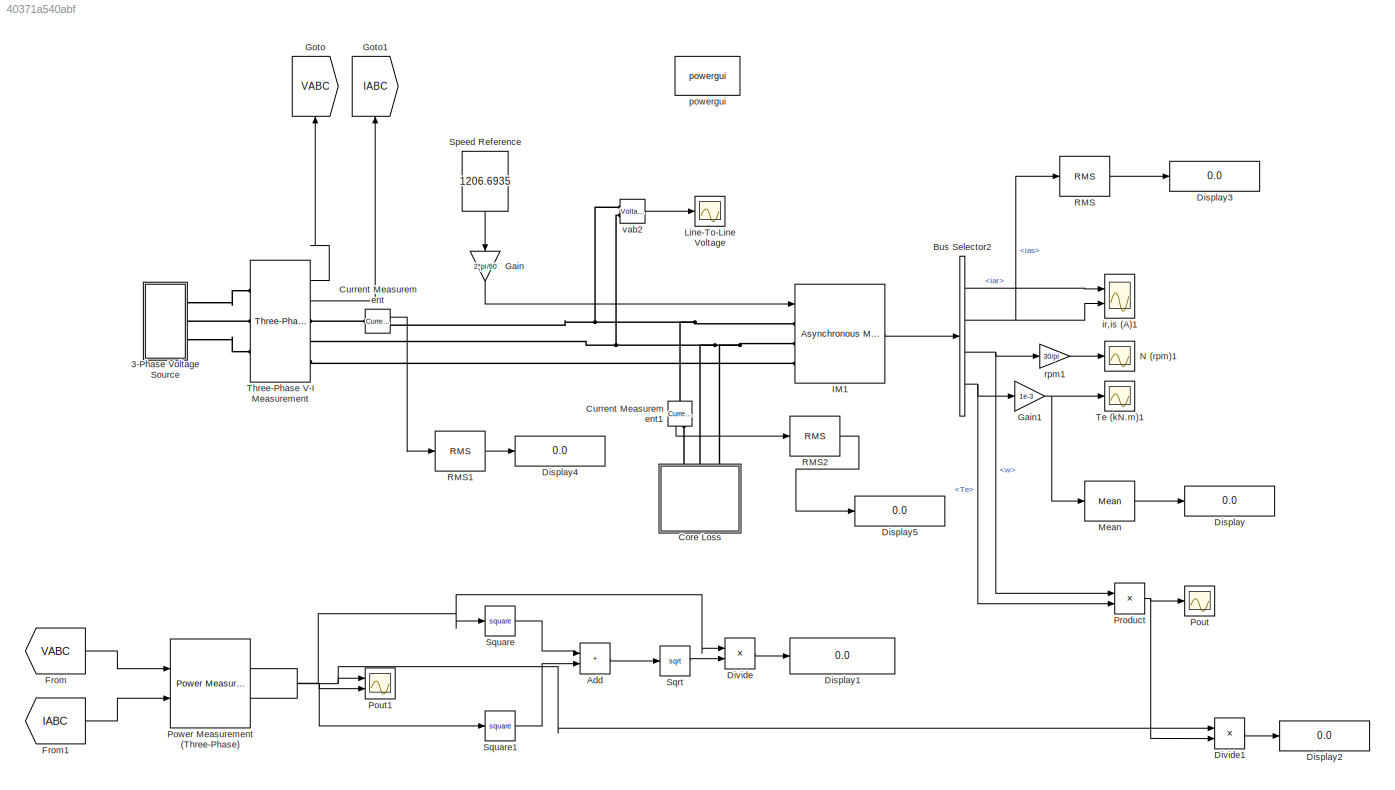
MODEL slx_40371a540abf
KIND model
CONFIG AbsTol = auto
CONFIG EnableMultiTasking = off
CONFIG FixedStep = 1e-5
CONFIG InitFcn = parameter
CONFIG MaxStep = auto
CONFIG MinStep = auto
CONFIG RelTol = 1e-3
CONFIG SampleTimeConstraint = Unconstrained
CONFIG SolverName = FixedStepAuto
CONFIG StartTime = 0.0
CONFIG StopTime = 10
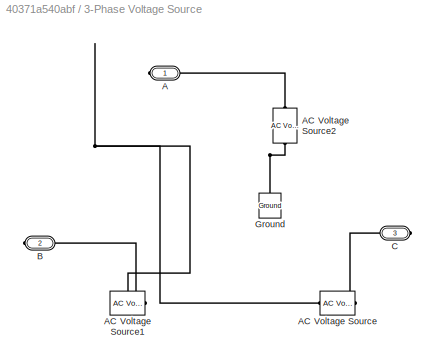
BLOCK [SubSystem] 3-Phase Voltage Source
  Ports = [0, 0, 0, 0, 0, 0, 3]
  RequestExecContextInheritance = off
BLOCK [PMIOPort] 3-Phase Voltage Source/A
  Side = Right
BLOCK [Reference] 3-Phase Voltage Source/AC Voltage Source  REF=spsACVoltageSourceLib/AC Voltage Source
  NameLocation = left
  Ports = [0, 0, 0, 0, 0, 1, 1]
  SourceBlock = spsACVoltageSourceLib/AC Voltage Source
  SourceProductBaseCode = PS
  SourceType = AC Voltage Source
BLOCK [Reference] 3-Phase Voltage Source/AC Voltage Source1  REF=spsACVoltageSourceLib/AC Voltage Source
  NameLocation = right
  Ports = [0, 0, 0, 0, 0, 1, 1]
  SourceBlock = spsACVoltageSourceLib/AC Voltage Source
  SourceProductBaseCode = PS
  SourceType = AC Voltage Source
BLOCK [Reference] 3-Phase Voltage Source/AC Voltage Source2  REF=spsACVoltageSourceLib/AC Voltage Source
  Ports = [0, 0, 0, 0, 0, 1, 1]
  SourceBlock = spsACVoltageSourceLib/AC Voltage Source
  SourceProductBaseCode = PS
  SourceType = AC Voltage Source
BLOCK [PMIOPort] 3-Phase Voltage Source/B
  Port = 2
  Side = Right
BLOCK [PMIOPort] 3-Phase Voltage Source/C
  Port = 3
  Side = Right
BLOCK [Reference] 3-Phase Voltage Source/Ground  REF=spsGroundLib/Ground
  NameLocation = right
  Ports = [0, 0, 0, 0, 0, 1]
  SourceBlock = spsGroundLib/Ground
  SourceProductBaseCode = PS
  SourceType = Ground
BLOCK [Sum] Add
  IconShape = rectangular
  Ports = [2, 1]
BLOCK [BusSelector] Bus Selector2
  OutputSignals = iar,ias,w,Te
  Ports = [1, 4]
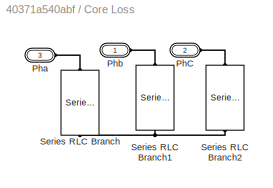
BLOCK [SubSystem] Core Loss
  NameLocation = left
  Ports = [0, 0, 0, 0, 0, 3]
  RequestExecContextInheritance = off
BLOCK [PMIOPort] Core Loss/PhC
  Port = 2
  Side = Left
BLOCK [PMIOPort] Core Loss/Pha
  Port = 3
  Side = Left
BLOCK [PMIOPort] Core Loss/Phb
  Side = Left
BLOCK [Reference] Core Loss/Series RLC Branch  REF=spsSeriesRLCBranchLib/Series RLC Branch
  NameLocation = left
  Ports = [0, 0, 0, 0, 0, 1, 1]
  SourceBlock = spsSeriesRLCBranchLib/Series RLC Branch
  SourceProductBaseCode = PS
  SourceType = Series RLC Branch
BLOCK [Reference] Core Loss/Series RLC Branch1  REF=spsSeriesRLCBranchLib/Series RLC Branch
  NameLocation = left
  Ports = [0, 0, 0, 0, 0, 1, 1]
  SourceBlock = spsSeriesRLCBranchLib/Series RLC Branch
  SourceProductBaseCode = PS
  SourceType = Series RLC Branch
BLOCK [Reference] Core Loss/Series RLC Branch2  REF=spsSeriesRLCBranchLib/Series RLC Branch
  NameLocation = left
  Ports = [0, 0, 0, 0, 0, 1, 1]
  SourceBlock = spsSeriesRLCBranchLib/Series RLC Branch
  SourceProductBaseCode = PS
  SourceType = Series RLC Branch
BLOCK [Reference] Current Measurement  REF=spsCurrentMeasurementLib/Current Measurement
  Ports = [0, 1, 0, 0, 0, 1, 1]
  SourceBlock = spsCurrentMeasurementLib/Current Measurement
  SourceProductBaseCode = PS
  SourceType = Current Measurement
  UserDataPersistent = on
BLOCK [Reference] Current Measurement1  REF=spsCurrentMeasurementLib/Current Measurement
  NameLocation = left
  Ports = [0, 1, 0, 0, 0, 1, 1]
  SourceBlock = spsCurrentMeasurementLib/Current Measurement
  SourceProductBaseCode = PS
  SourceType = Current Measurement
  UserDataPersistent = on
BLOCK [Display] Display
  Decimation = 1
  Format = long
  Ports = [1]
BLOCK [Display] Display1
  Decimation = 1
  Format = long
  Ports = [1]
BLOCK [Display] Display2
  Decimation = 1
  Format = long
  Ports = [1]
BLOCK [Display] Display3
  Decimation = 1
  Format = long
  Ports = [1]
BLOCK [Display] Display4
  Decimation = 1
  Format = long
  Ports = [1]
BLOCK [Display] Display5
  Decimation = 1
  Format = long
  Ports = [1]
BLOCK [Product] Divide
  Inputs = */
  Ports = [2, 1]
BLOCK [Product] Divide1
  Inputs = */
  Ports = [2, 1]
BLOCK [From] From
  GotoTag = VABC
BLOCK [From] From1
  GotoTag = IABC
BLOCK [Gain] Gain
  Gain = 2*pi/60
  NameLocation = left
BLOCK [Gain] Gain1
  Gain = 1e-3
BLOCK [Goto] Goto
  GotoTag = VABC
  NameLocation = right
BLOCK [Goto] Goto1
  GotoTag = IABC
  NameLocation = right
BLOCK [Reference] IM1  REF=spsAsynchronousMachineSIUnitsLib/Asynchronous Machine
SI Units
  AttributesFormatString = \n
  Ports = [1, 1, 0, 0, 0, 3]
  SourceBlock = spsAsynchronousMachineSIUnitsLib/Asynchronous Machine\nSI Units
  SourceProductBaseCode = PS
  SourceType = Asynchronous Machine
BLOCK [Scope] Line-To-Line Voltage
  Floating = off
  NameLocation = top
  NumInputPorts = 1
  Ports = [1]
  ScopeSpecificationString = Simulink.scopes.TimeScopeBlockCfg('CurrentConfiguration', extmgr.ConfigurationSet(extmgr.Configuration('Core','General UI',true),extmgr.Configuration('Core','Source UI',true),extmgr.Configuration('Sources','WiredSimulink',true,'DataLoggingSaveFormat','Array','DataLoggingDecimation','1','DataLoggingDecimateData',true,'DataLoggingVariableName','ScopeData7'),extmgr.Configuration('Visuals','Time Domai...<+1672ch>
BLOCK [Reference] Mean  REF=spsMeanLib/Mean
  Ports = [1, 1]
  SourceBlock = spsMeanLib/Mean
  SourceProductBaseCode = PS
  SourceType = Mean
BLOCK [Scope] N (rpm)1
  Floating = off
  NameLocation = top
  NumInputPorts = 1
  Ports = [1]
  ScopeSpecificationString = Simulink.scopes.TimeScopeBlockCfg('CurrentConfiguration', extmgr.ConfigurationSet(extmgr.Configuration('Core','General UI',true,'FigureColor',[1 1 1]),extmgr.Configuration('Core','Source UI',true),extmgr.Configuration('Sources','WiredSimulink',true,'DataLoggingSaveFormat','Array','DataLoggingDecimation','1','DataLoggingDecimateData',true),extmgr.Configuration('Visuals','Time Domain',true,'Serializ...<+1746ch>
BLOCK [Scope] Pout
  Floating = off
  NumInputPorts = 1
  Ports = [1]
  ScopeSpecificationString = Simulink.scopes.TimeScopeBlockCfg('CurrentConfiguration', extmgr.ConfigurationSet(extmgr.Configuration('Core','General UI',true,'FigureColor',[1 1 1]),extmgr.Configuration('Core','Source UI',true),extmgr.Configuration('Sources','WiredSimulink',true,'DataLoggingSaveFormat','Array','DataLoggingDecimation','1','DataLoggingDecimateData',true,'DataLoggingVariableName','ScopeData1'),extmgr.Configuration...<+1806ch>
BLOCK [Scope] Pout1
  Floating = off
  NumInputPorts = 2
  Ports = [2]
  ScopeSpecificationString = Simulink.scopes.TimeScopeBlockCfg('CurrentConfiguration', extmgr.ConfigurationSet(extmgr.Configuration('Core','General UI',true,'FigureColor',[1 1 1]),extmgr.Configuration('Core','Source UI',true),extmgr.Configuration('Sources','WiredSimulink',true,'DataLoggingSaveFormat','Array','DataLoggingDecimation','1','DataLoggingDecimateData',true,'DataLoggingVariableName','ScopeData2'),extmgr.Configuration...<+2608ch>
BLOCK [Reference] Power Measurement (Three-Phase)  REF=eePowerMeasurement/Power Measurement
(Three-Phase)
  Ports = [2, 2]
  SourceBlock = eePowerMeasurement/Power Measurement\n(Three-Phase)
  SourceProductBaseCode = PS
  SourceType = Power Measurement (Three-Phase)
BLOCK [Product] Product
  Ports = [2, 1]
BLOCK [Reference] RMS  REF=spsRMSLib/RMS
  Ports = [1, 1]
  SourceBlock = spsRMSLib/RMS
  SourceProductBaseCode = PS
  SourceType = RMS
BLOCK [Reference] RMS1  REF=spsRMSLib/RMS
  Ports = [1, 1]
  SourceBlock = spsRMSLib/RMS
  SourceProductBaseCode = PS
  SourceType = RMS
BLOCK [Reference] RMS2  REF=spsRMSLib/RMS
  Ports = [1, 1]
  SourceBlock = spsRMSLib/RMS
  SourceProductBaseCode = PS
  SourceType = RMS
BLOCK [Constant] Speed Reference
  NameLocation = left
  Value = 1206.6935
BLOCK [Sqrt] Sqrt
BLOCK [Math] Square
  Operator = square
  Ports = [1, 1]
BLOCK [Math] Square1
  Operator = square
  Ports = [1, 1]
BLOCK [Scope] Te (kN.m)1
  Floating = off
  NumInputPorts = 1
  Ports = [1]
  ScopeSpecificationString = Simulink.scopes.TimeScopeBlockCfg('CurrentConfiguration', extmgr.ConfigurationSet(extmgr.Configuration('Core','General UI',true,'FigureColor',[1 1 1]),extmgr.Configuration('Core','Source UI',true),extmgr.Configuration('Sources','WiredSimulink',true,'DataLoggingSaveFormat','Array','DataLoggingDecimation','1','DataLoggingDecimateData',true,'DataLoggingVariableName','ScopeData1'),extmgr.Configuration...<+1806ch>
BLOCK [Reference] Three-Phase V-I Measurement  REF=spsThreePhaseVIMeasurementLib/Three-Phase
V-I Measurement
  Ports = [0, 2, 0, 0, 0, 3, 3]
  SourceBlock = spsThreePhaseVIMeasurementLib/Three-Phase\nV-I Measurement
  SourceProductBaseCode = PS
  SourceType = Three-Phase VI Measurement
BLOCK [Scope] ir,is (A)1
  Floating = off
  NameLocation = top
  NumInputPorts = 2
  Ports = [2]
  ScopeSpecificationString = Simulink.scopes.TimeScopeBlockCfg('CurrentConfiguration', extmgr.ConfigurationSet(extmgr.Configuration('Core','General UI',true,'FigureColor',[1 1 1]),extmgr.Configuration('Core','Source UI',true),extmgr.Configuration('Sources','WiredSimulink',true,'DataLoggingSaveFormat','Array','DataLoggingDecimation','1','DataLoggingDecimateData',true,'DataLoggingVariableName','ScopeData2'),extmgr.Configuration...<+2610ch>
BLOCK [Reference] powergui  REF=spspowerguiLib/powergui
  Ports = []
  SourceBlock = spspowerguiLib/powergui
  SourceProductBaseCode = PS
  SourceType = PSB option menu block
BLOCK [Gain] rpm1
  Gain = 30/pi
  OutDataTypeStr = Inherit: Same as input
  ParamDataTypeStr = Inherit: Same as input
  SaturateOnIntegerOverflow = on
BLOCK [Reference] vab2  REF=spsVoltageMeasurementLib/Voltage Measurement
  AttributesFormatString = \n
  NameLocation = top
  Ports = [0, 1, 0, 0, 0, 2]
  SourceBlock = spsVoltageMeasurementLib/Voltage Measurement
  SourceProductBaseCode = PS
  SourceType = Voltage Measurement
  Tag = PoWeRsYsTeMmEaSuReMeNt
LINE Add:1 -> Sqrt:1
LINE Bus Selector2:1 -> ir,is (A)1:1
NET Bus Selector2:2 -> RMS:1, ir,is (A)1:2
NET Bus Selector2:3 -> Product:1, rpm1:1
NET Bus Selector2:4 -> Gain1:1, Product:2
LINE Current Measurement1:1 -> RMS2:1
LINE Current Measurement:1 -> RMS1:1
LINE Divide1:1 -> Display2:1
LINE Divide:1 -> Display1:1
LINE From1:1 -> Power Measurement (Three-Phase):2
LINE From:1 -> Power Measurement (Three-Phase):1
NET Gain1:1 -> Mean:1, Te (kN.m)1:1
LINE Gain:1 -> IM1:1
LINE IM1:1 -> Bus Selector2:1
LINE Mean:1 -> Display:1
NET Power Measurement (Three-Phase):1 -> Divide1:1, Divide:1, Pout1:1, Square:1
NET Power Measurement (Three-Phase):2 -> Pout1:2, Square1:1
NET Product:1 -> Divide1:2, Pout:1
LINE RMS1:1 -> Display4:1
LINE RMS2:1 -> Display5:1
LINE RMS:1 -> Display3:1
LINE Speed Reference:1 -> Gain:1
LINE Sqrt:1 -> Divide:2
LINE Square1:1 -> Add:2
LINE Square:1 -> Add:1
LINE Three-Phase V-I Measurement:1 -> Goto:1
LINE Three-Phase V-I Measurement:2 -> Goto1:1
LINE rpm1:1 -> N (rpm)1:1
LINE vab2:1 -> Line-To-Line Voltage:1
PLINE 3-Phase Voltage Source/A:RConn1 -- 3-Phase Voltage Source/AC Voltage Source2:RConn1
PNET net1: 3-Phase Voltage Source/AC Voltage Source1:LConn1 -- 3-Phase Voltage Source/AC Voltage Source2:LConn1 -- 3-Phase Voltage Source/AC Voltage Source:LConn1 -- 3-Phase Voltage Source/Ground:LConn1
PLINE 3-Phase Voltage Source/AC Voltage Source1:RConn1 -- 3-Phase Voltage Source/B:RConn1
PLINE 3-Phase Voltage Source/AC Voltage Source:RConn1 -- 3-Phase Voltage Source/C:RConn1
PLINE 3-Phase Voltage Source:RConn1 -- Three-Phase V-I Measurement:LConn1
PLINE 3-Phase Voltage Source:RConn2 -- Three-Phase V-I Measurement:LConn2
PLINE 3-Phase Voltage Source:RConn3 -- Three-Phase V-I Measurement:LConn3
PLINE Core Loss/PhC:RConn1 -- Core Loss/Series RLC Branch2:LConn1
PLINE Core Loss/Pha:RConn1 -- Core Loss/Series RLC Branch:LConn1
PLINE Core Loss/Phb:RConn1 -- Core Loss/Series RLC Branch1:LConn1
PNET net2: Core Loss/Series RLC Branch1:RConn1 -- Core Loss/Series RLC Branch2:RConn1 -- Core Loss/Series RLC Branch:RConn1
PLINE Core Loss:LConn1 -- Current Measurement1:RConn1
PNET net3: Core Loss:LConn2 -- Core Loss:LConn3 -- IM1:LConn2 -- Three-Phase V-I Measurement:RConn2 -- vab2:LConn2
PNET net4: Current Measurement1:LConn1 -- Current Measurement:RConn1 -- IM1:LConn1 -- vab2:LConn1
PLINE Current Measurement:LConn1 -- Three-Phase V-I Measurement:RConn1
PLINE IM1:LConn3 -- Three-Phase V-I Measurement:RConn3
note: NET lines group one-source signal fan-out (src -> all destinations, sorted); 1:1 wires keep LINE; PNET lines group multi-terminal physical nets as a canonical sorted terminal list (undirected conserving connections); 2-terminal nets keep the pairwise PLINE form
